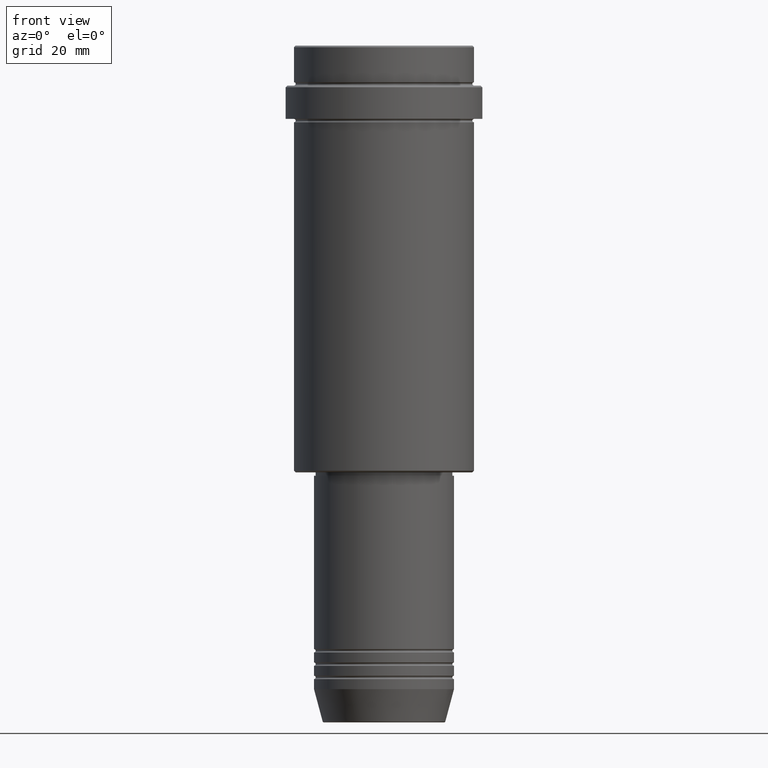
[diagram: clean part render]
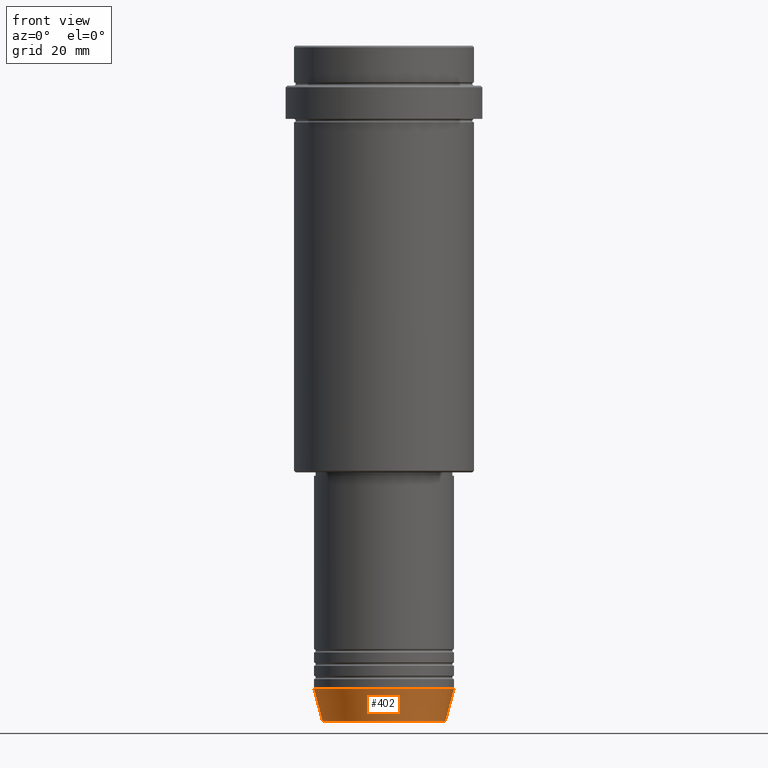
[diagram: same view with one face highlighted and labeled with its STEP entity id]
A machine part, front view. The second image highlights one B-rep face of the part: STEP entity #402.
In plain terms, the highlighted conical surface has half-angle 15 deg.
Its self-contained STEP definition (entity closure, byte-faithful):
#166 = ORIENTED_EDGE ( 'NONE', *, *, #1014, .F. ) ;
#194 = LINE ( 'NONE', #621, #1006 ) ;
#301 = DIRECTION ( 'NONE',  ( 0.2588190451025211836, 0.000000000000000000, 0.9659258262890680902 ) ) ;
#305 = VERTEX_POINT ( 'NONE', #1252 ) ;
#333 = ORIENTED_EDGE ( 'NONE', *, *, #510, .F. ) ;
#341 = CARTESIAN_POINT ( 'NONE',  ( 0.000000000000000000, 0.000000000000000000, -193.0000000000000000 ) ) ;
#347 = AXIS2_PLACEMENT_3D ( 'NONE', #834, #649, #1040 ) ;
#359 = CARTESIAN_POINT ( 'NONE',  ( -21.00000000000000000, 2.571758278209441661E-15, -193.0000000000000000 ) ) ;
#381 = EDGE_CURVE ( 'NONE', #613, #590, #1211, .T. ) ;
#385 = VERTEX_POINT ( 'NONE', #359 ) ;
#392 = DIRECTION ( 'NONE',  ( -0.2588190451025211836, 3.169619151431770488E-17, 0.9659258262890680902 ) ) ;
#402 = ADVANCED_FACE ( 'NONE', ( #1374 ), #569, .T. ) ;
#497 = CARTESIAN_POINT ( 'NONE',  ( 21.00000000000000000, 0.000000000000000000, -193.0000000000000000 ) ) ;
#501 = EDGE_CURVE ( 'NONE', #590, #305, #944, .T. ) ;
#510 = EDGE_CURVE ( 'NONE', #613, #385, #194, .T. ) ;
#526 = VECTOR ( 'NONE', #301, 1000.000000000000114 ) ;
#561 = DIRECTION ( 'NONE',  ( 1.000000000000000000, 0.000000000000000000, 0.000000000000000000 ) ) ;
#569 = CONICAL_SURFACE ( 'NONE', #347, 21.00000000000000000, 0.2617993877991499074 ) ;
#590 = VERTEX_POINT ( 'NONE', #1325 ) ;
#613 = VERTEX_POINT ( 'NONE', #1223 ) ;
#621 = CARTESIAN_POINT ( 'NONE',  ( -21.00000000000000000, 2.571758278209441661E-15, -193.0000000000000000 ) ) ;
#628 = EDGE_LOOP ( 'NONE', ( #333, #1243, #784, #166 ) ) ;
#649 = DIRECTION ( 'NONE',  ( -0.000000000000000000, -0.000000000000000000, 1.000000000000000000 ) ) ;
#652 = DIRECTION ( 'NONE',  ( 1.000000000000000000, 0.000000000000000000, 0.000000000000000000 ) ) ;
#761 = DIRECTION ( 'NONE',  ( -0.000000000000000000, -0.000000000000000000, 1.000000000000000000 ) ) ;
#784 = ORIENTED_EDGE ( 'NONE', *, *, #501, .T. ) ;
#834 = CARTESIAN_POINT ( 'NONE',  ( 0.000000000000000000, 0.000000000000000000, -193.0000000000000000 ) ) ;
#944 = LINE ( 'NONE', #497, #526 ) ;
#1006 = VECTOR ( 'NONE', #392, 1000.000000000000114 ) ;
#1014 = EDGE_CURVE ( 'NONE', #385, #305, #1293, .T. ) ;
#1040 = DIRECTION ( 'NONE',  ( 1.000000000000000000, 0.000000000000000000, 0.000000000000000000 ) ) ;
#1077 = AXIS2_PLACEMENT_3D ( 'NONE', #1225, #1108, #561 ) ;
#1108 = DIRECTION ( 'NONE',  ( -0.000000000000000000, -0.000000000000000000, 1.000000000000000000 ) ) ;
#1211 = CIRCLE ( 'NONE', #1077, 18.41980749484383040 ) ;
#1216 = AXIS2_PLACEMENT_3D ( 'NONE', #341, #761, #652 ) ;
#1223 = CARTESIAN_POINT ( 'NONE',  ( -18.41980749484383040, 2.413767053578267064E-15, -202.6294095225512990 ) ) ;
#1225 = CARTESIAN_POINT ( 'NONE',  ( 0.000000000000000000, 0.000000000000000000, -202.6294095225512990 ) ) ;
#1243 = ORIENTED_EDGE ( 'NONE', *, *, #381, .T. ) ;
#1252 = CARTESIAN_POINT ( 'NONE',  ( 21.00000000000000000, 0.000000000000000000, -193.0000000000000000 ) ) ;
#1293 = CIRCLE ( 'NONE', #1216, 21.00000000000000000 ) ;
#1325 = CARTESIAN_POINT ( 'NONE',  ( 18.41980749484383040, 0.000000000000000000, -202.6294095225512990 ) ) ;
#1374 = FACE_OUTER_BOUND ( 'NONE', #628, .T. ) ;